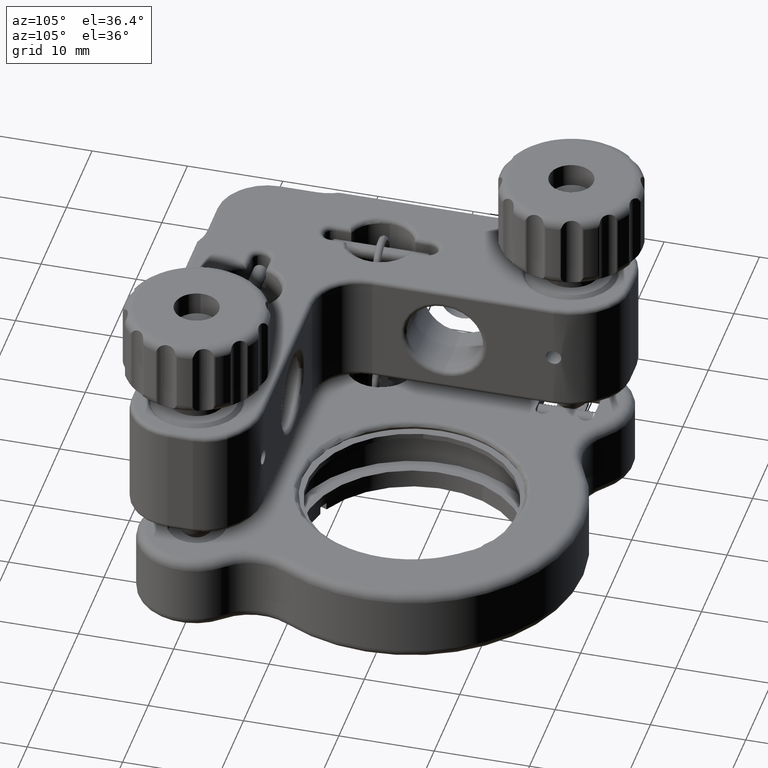
[diagram: clean part render]
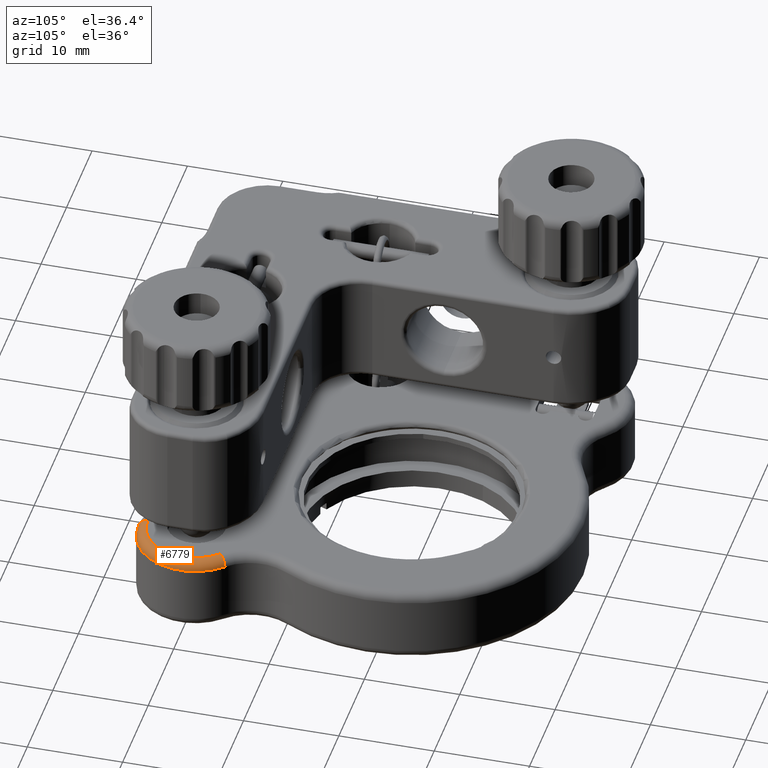
[diagram: same view with one face highlighted and labeled with its STEP entity id]
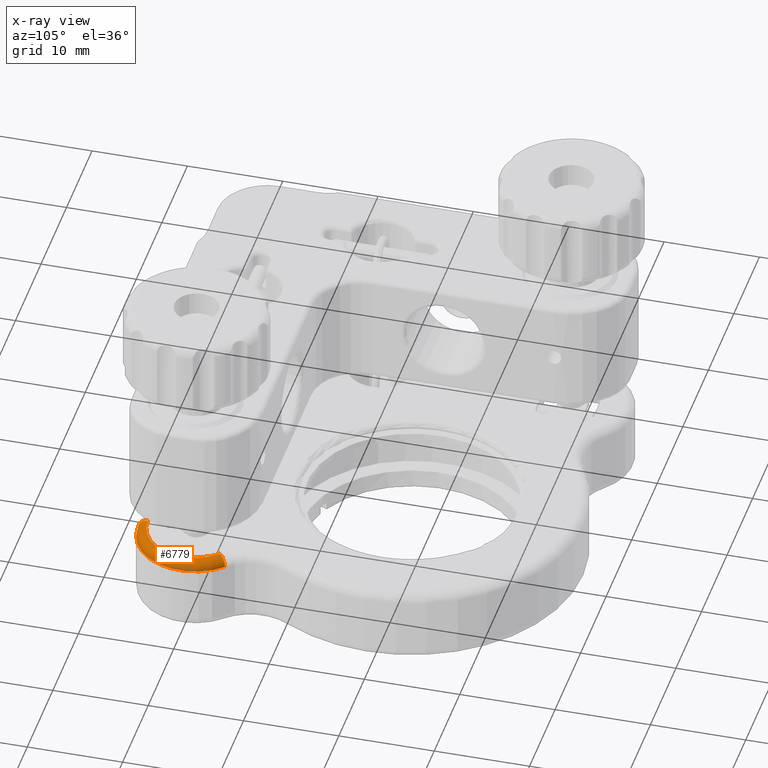
[diagram: x-ray of the same camera — body ghosted, the highlighted face saturated]
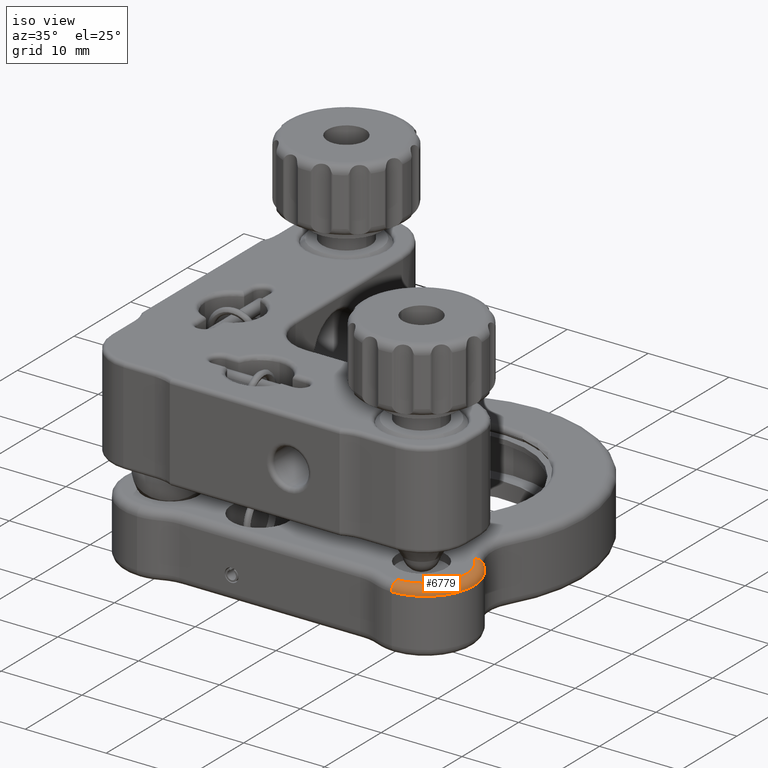
[diagram: same view with one face highlighted and labeled with its STEP entity id]
A machine part, auxiliary view. The second image highlights one B-rep face of the part: STEP entity #6779.
The next image is the same camera in x-ray: the body ghosted, the highlighted face saturated — about 0% of this face is hidden behind the body in this view.
A second angle (iso view) of the same face is appended — the face is thin or edge-on in the first view.
In plain terms, the highlighted toroidal blend (fillet) surface has major radius 5 mm and minor (blend) radius 1 mm.
Its self-contained STEP definition (entity closure, byte-faithful):
#236 = CARTESIAN_POINT ( 'NONE',  ( 31.50000000000000000, 4.250072516143177400E-014, -10.99999999999998800 ) ) ;
#260 = ORIENTED_EDGE ( 'NONE', *, *, #1465, .T. ) ;
#295 = DIRECTION ( 'NONE',  ( 0.7077162953402632600, 0.7064967411884171000, 0.0000000000000000000 ) ) ;
#615 = CIRCLE ( 'NONE', #16627, 6.000000000000000000 ) ;
#853 = ORIENTED_EDGE ( 'NONE', *, *, #4459, .T. ) ;
#1465 = EDGE_CURVE ( 'NONE', #8254, #12186, #4025, .T. ) ;
#1600 = CARTESIAN_POINT ( 'NONE',  ( 35.74629777204159400, 4.238980447130548300, -10.99999999999998600 ) ) ;
#2465 = DIRECTION ( 'NONE',  ( 1.000000000000000000, 1.137978600240785500E-015, 3.911801438327715800E-016 ) ) ;
#2719 = CIRCLE ( 'NONE', #9154, 1.000000000000000000 ) ;
#4025 = CIRCLE ( 'NONE', #20988, 1.000000000000000000 ) ;
#4459 = EDGE_CURVE ( 'NONE', #20011, #12376, #2719, .T. ) ;
#4587 = EDGE_CURVE ( 'NONE', #8254, #12376, #8558, .T. ) ;
#5238 = DIRECTION ( 'NONE',  ( 1.156482317317871300E-015, -1.000000000000000000, -1.942890293094027200E-016 ) ) ;
#5763 = AXIS2_PLACEMENT_3D ( 'NONE', #236, #11586, #5238 ) ;
#5966 = FACE_OUTER_BOUND ( 'NONE', #9238, .T. ) ;
#6522 = EDGE_CURVE ( 'NONE', #20011, #12186, #615, .T. ) ;
#6779 = ADVANCED_FACE ( 'NONE', ( #5966 ), #11250, .T. ) ;
#8254 = VERTEX_POINT ( 'NONE', #20234 ) ;
#8390 = DIRECTION ( 'NONE',  ( 0.7064967411884172100, -0.7077162953402631500, 5.041171915349986300E-015 ) ) ;
#8558 = CIRCLE ( 'NONE', #18658, 5.000000000000000000 ) ;
#8997 = CARTESIAN_POINT ( 'NONE',  ( 31.50000000000000700, -4.999999999999957400, -10.99999999999998900 ) ) ;
#9154 = AXIS2_PLACEMENT_3D ( 'NONE', #19830, #8390, #295 ) ;
#9235 = CARTESIAN_POINT ( 'NONE',  ( 31.50000000000000700, -5.999999999999957400, -10.99999999999998900 ) ) ;
#9238 = EDGE_LOOP ( 'NONE', ( #16755, #260, #15948, #853 ) ) ;
#9632 = CARTESIAN_POINT ( 'NONE',  ( 35.03858147670133100, 3.532483705942119500, -9.999999999999984000 ) ) ;
#11250 = TOROIDAL_SURFACE ( 'NONE', #5763, 5.000000000000000000, 1.000000000000000000 ) ;
#11586 = DIRECTION ( 'NONE',  ( 3.911801438327713800E-016, 1.942890293094031600E-016, -1.000000000000000000 ) ) ;
#12186 = VERTEX_POINT ( 'NONE', #9235 ) ;
#12376 = VERTEX_POINT ( 'NONE', #9632 ) ;
#14442 = DIRECTION ( 'NONE',  ( 3.911801438327713800E-016, 1.942890293094031600E-016, -1.000000000000000000 ) ) ;
#15317 = CARTESIAN_POINT ( 'NONE',  ( 31.50000000000000000, 4.250072516143177400E-014, -9.999999999999987600 ) ) ;
#15948 = ORIENTED_EDGE ( 'NONE', *, *, #6522, .F. ) ;
#16023 = DIRECTION ( 'NONE',  ( 1.156482317317871300E-015, -1.000000000000000000, -2.891205793294678300E-016 ) ) ;
#16627 = AXIS2_PLACEMENT_3D ( 'NONE', #17669, #14442, #16023 ) ;
#16755 = ORIENTED_EDGE ( 'NONE', *, *, #4587, .F. ) ;
#16911 = DIRECTION ( 'NONE',  ( 1.387778780781445700E-015, -1.000000000000000000, -3.469446951953614200E-016 ) ) ;
#17669 = CARTESIAN_POINT ( 'NONE',  ( 31.50000000000000000, 4.250072516143177400E-014, -10.99999999999998800 ) ) ;
#18658 = AXIS2_PLACEMENT_3D ( 'NONE', #15317, #20120, #16911 ) ;
#18798 = DIRECTION ( 'NONE',  ( 0.0000000000000000000, 1.000000000000000000, 0.0000000000000000000 ) ) ;
#19830 = CARTESIAN_POINT ( 'NONE',  ( 35.03858147670133900, 3.532483705942119500, -10.99999999999998600 ) ) ;
#20011 = VERTEX_POINT ( 'NONE', #1600 ) ;
#20120 = DIRECTION ( 'NONE',  ( -3.911801438327713800E-016, -1.942890293094031600E-016, 1.000000000000000000 ) ) ;
#20234 = CARTESIAN_POINT ( 'NONE',  ( 31.50000000000000700, -4.999999999999957400, -9.999999999999989300 ) ) ;
#20988 = AXIS2_PLACEMENT_3D ( 'NONE', #8997, #2465, #18798 ) ;